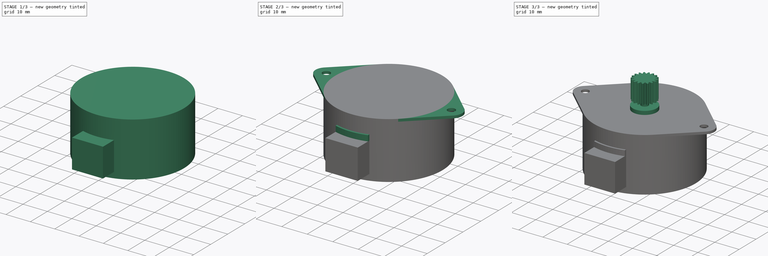
[diagram: build sequence overview — one tinted view per stage of 3, left to right]
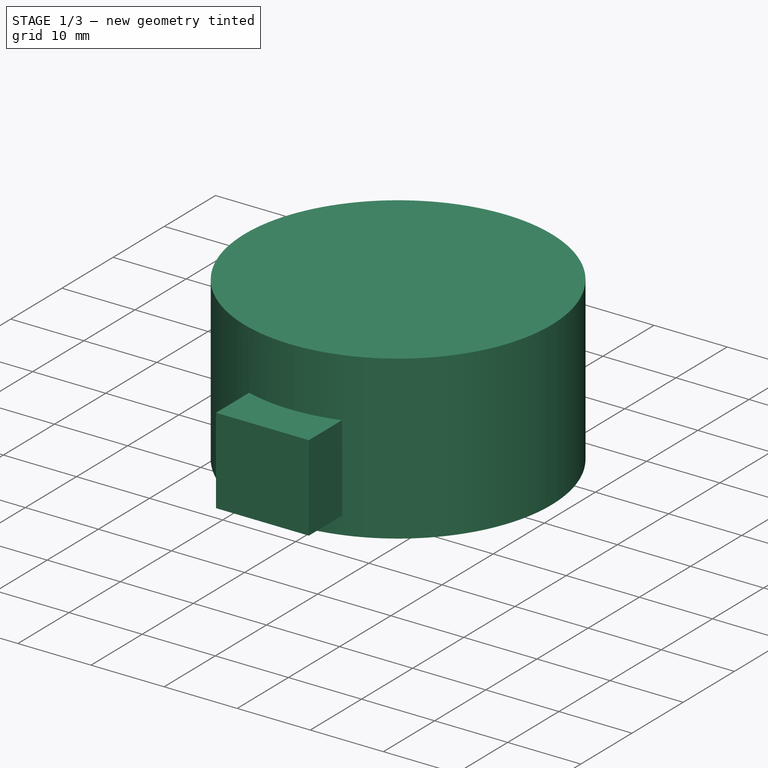
[diagram: stage 1 of 3 — iso view after this stage's code; geometry added in this stage tinted green]
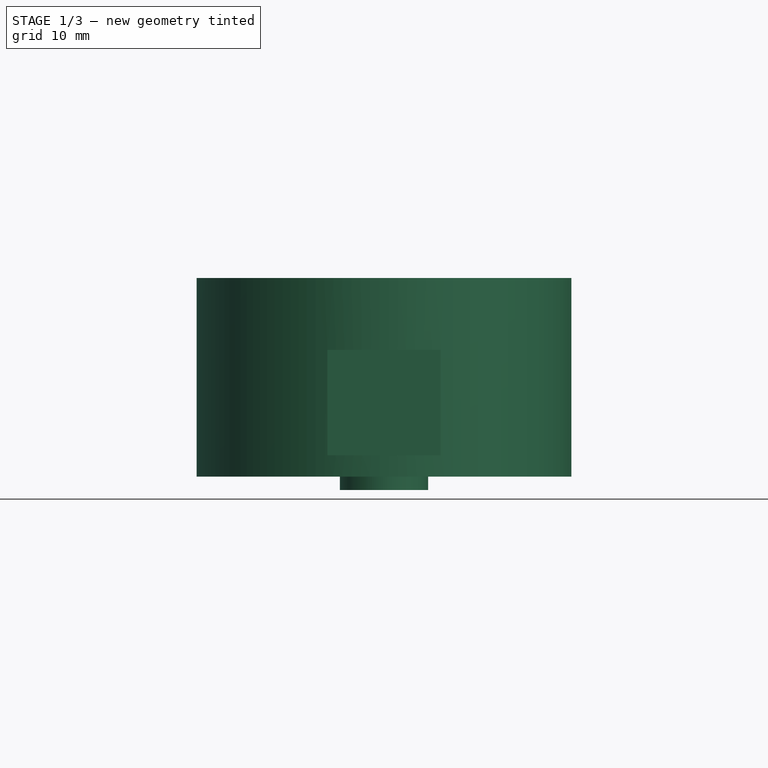
[diagram: stage 1 of 3 — front view after this stage's code; geometry added in this stage tinted green]
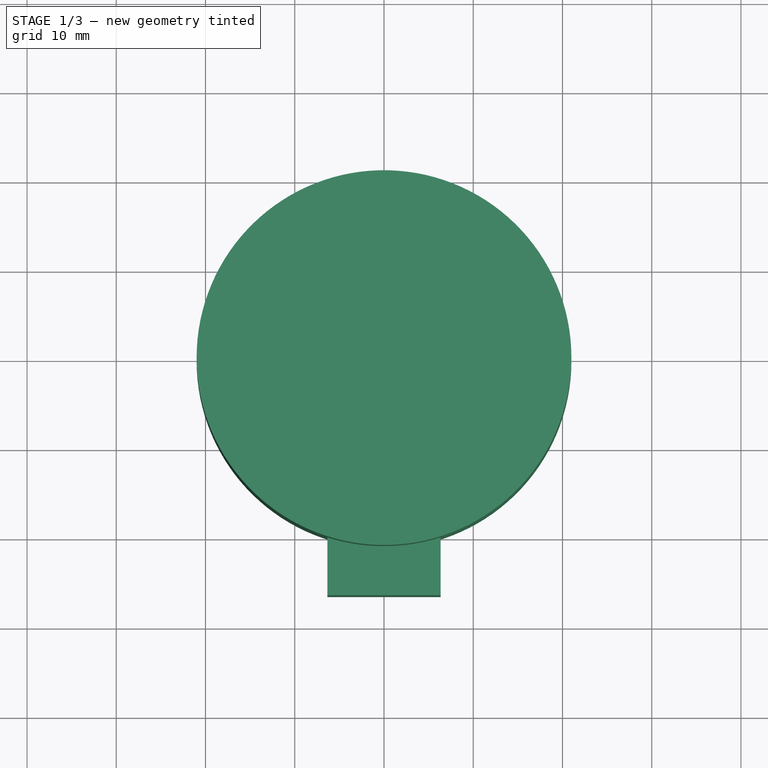
[diagram: stage 1 of 3 — top view after this stage's code; geometry added in this stage tinted green]
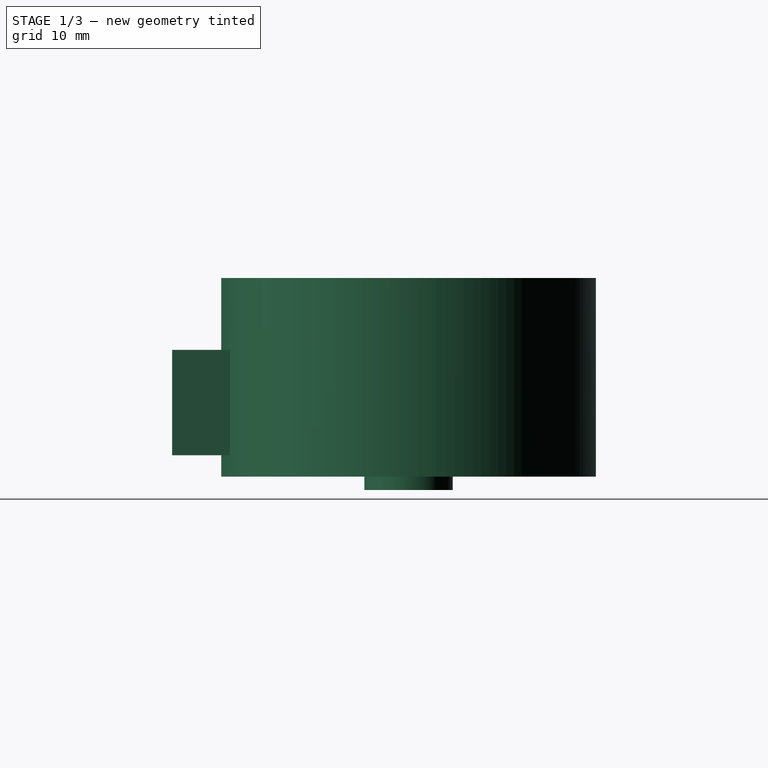
[diagram: stage 1 of 3 — right view after this stage's code; geometry added in this stage tinted green]
FCSTD DOCUMENT  (FreeCAD 0.19R21280 (Git))
Label: motor
License: All rights reserved
LicenseURL: http://en.wikipedia.org/wiki/All_rights_reserved
objects: Sketcher::SketchObject×8, PartDesign::Pad×8, Part::FeaturePython×6, App::FeaturePython×2, Part::Plane×1, Part::Part2DObjectPython×1, PartDesign::Body×1
note: 32 computed .brp shape members not serialized (recipe doc carries the construction recipe); baked Part::Feature solids carry a one-line shape summary decoded from their .brp

FEATURE [Sketcher::SketchObject] Sketch
  MapMode = 5
  Support = -> [XY_Plane]
  sketch-geometry (1):
    g0: Circle CenterX=0 CenterY=0 CenterZ=0 NormalX=0 NormalY=0 NormalZ=1 AngleXU=0 Radius=21
  constraints (2):
    c: Coincident(g0,g-1)
    c: Diameter(g0) = 42
FEATURE [PartDesign::Pad] Pad
  Length = 22.25
  Length2 = 100
  Midplane = true
  Profile = -> Sketch
  Type = 0
FEATURE [Sketcher::SketchObject] Sketch001
  MapMode = 5
  Placement = pos=(0,0,-11.125) rot=(1,0,0;3.14159rad)
  Support = -> [Pad]
  sketch-geometry (1):
    g0: Circle CenterX=0 CenterY=0 CenterZ=0 NormalX=0 NormalY=0 NormalZ=1 AngleXU=0 Radius=4.95
  constraints (2):
    c: Coincident(g0,g-1)
    c: Diameter(g0) = 9.9
FEATURE [PartDesign::Pad] Pad001
  BaseFeature = -> Pad
  Length = 1.5
  Length2 = 100
  Profile = -> Sketch001
  Type = 0
FEATURE [Part::Plane] Plane
  AttacherType = Attacher::AttachEngine3D
  Length = 50
  Placement = pos=(0,0,-8.73) rot=(1,0,0;3.14159rad)
  Width = 50
FEATURE [Sketcher::SketchObject] Sketch002
  ExternalGeometry = -> [Pad001]
  MapMode = 5
  Placement = pos=(0,0,-8.73) rot=(1,0,0;3.14159rad)
  Support = -> [Plane]
  sketch-geometry (5):
    g0: ArcOfCircle CenterX=0 CenterY=0 CenterZ=0 NormalX=0 NormalY=0 NormalZ=1 AngleXU=0 Radius=21 StartAngle=1.26361 EndAngle=1.87799
    g1: LineSegment StartX=-6.35 StartY=20.0169 StartZ=0 EndX=-6.35 EndY=26.5 EndZ=0
    g2: LineSegment StartX=-6.35 StartY=26.5 StartZ=0 EndX=6.35 EndY=26.5 EndZ=0
    g3: LineSegment StartX=6.35 StartY=26.5 StartZ=0 EndX=6.35 EndY=20.0169 EndZ=0
    g4: LineSegment [constr] StartX=0 StartY=26.5 StartZ=0 EndX=0 EndY=21 EndZ=0
  constraints (16):
    c: Coincident(g0,g-1)
    c: PointOnObject(g0,g-3)
    c: Coincident(g0,g1)
    c: Coincident(g1,g2)
    c: Horizontal(g2)
    c: Coincident(g2,g3)
    c: Coincident(g3,g0)
    c: Vertical(g3)
    c: Symmetric(g0,g0,g-2)
    c: Vertical(g1)
    c: DistanceX(g2,g2) = 12.7
    c: PointOnObject(g4,g-2)
    c: PointOnObject(g4,g0)
    c: PointOnObject(g4,g-2)
    c: PointOnObject(g4,g2)
    c: DistanceY(g4,g4) = 5.5
FEATURE [PartDesign::Pad] Pad002
  BaseFeature = -> Pad001
  Length = 11.8
  Length2 = 100
  Profile = -> Sketch002
  Reversed = true
  Type = 0
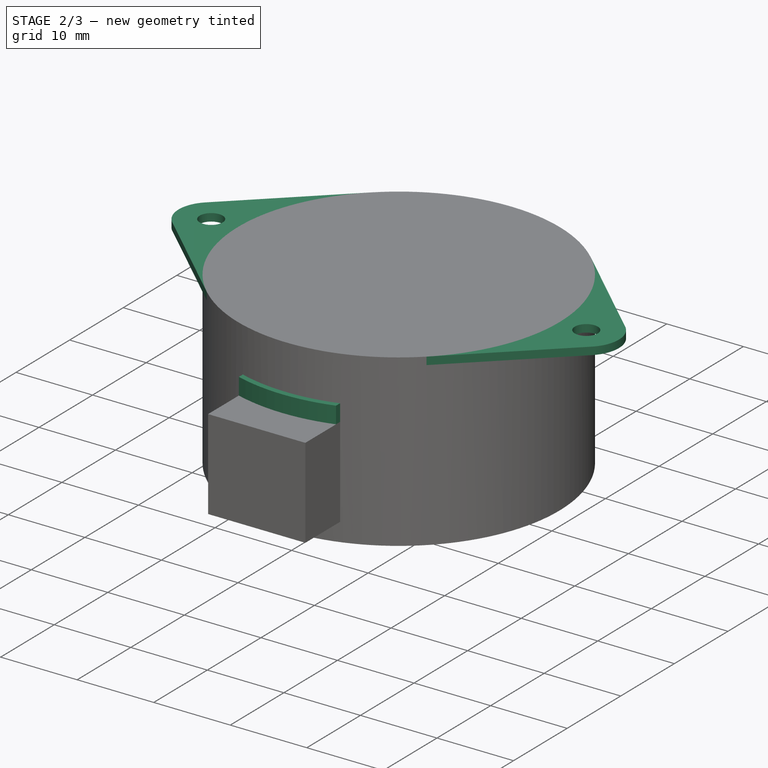
[diagram: stage 2 of 3 — iso view after this stage's code; geometry added in this stage tinted green]
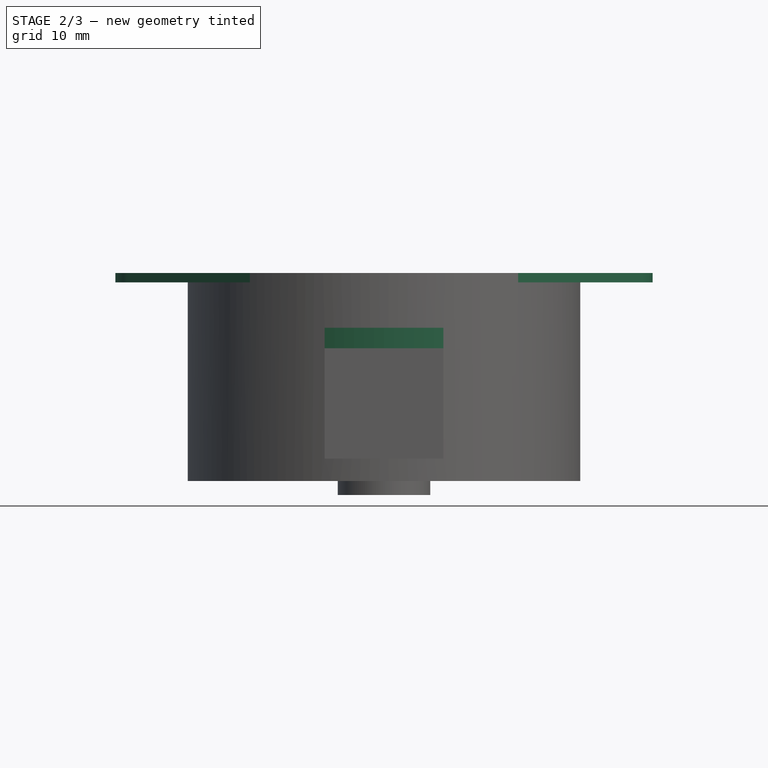
[diagram: stage 2 of 3 — front view after this stage's code; geometry added in this stage tinted green]
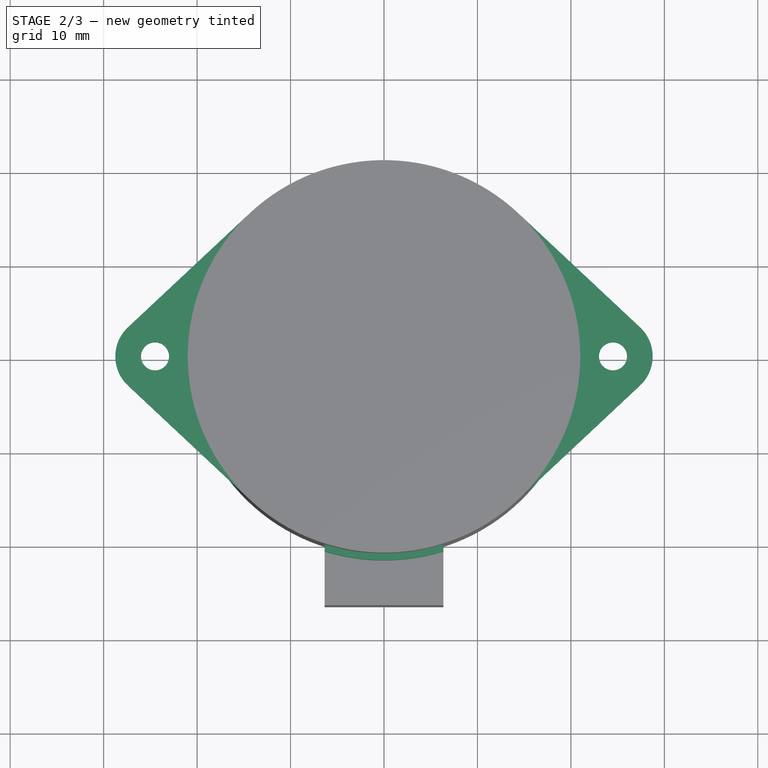
[diagram: stage 2 of 3 — top view after this stage's code; geometry added in this stage tinted green]
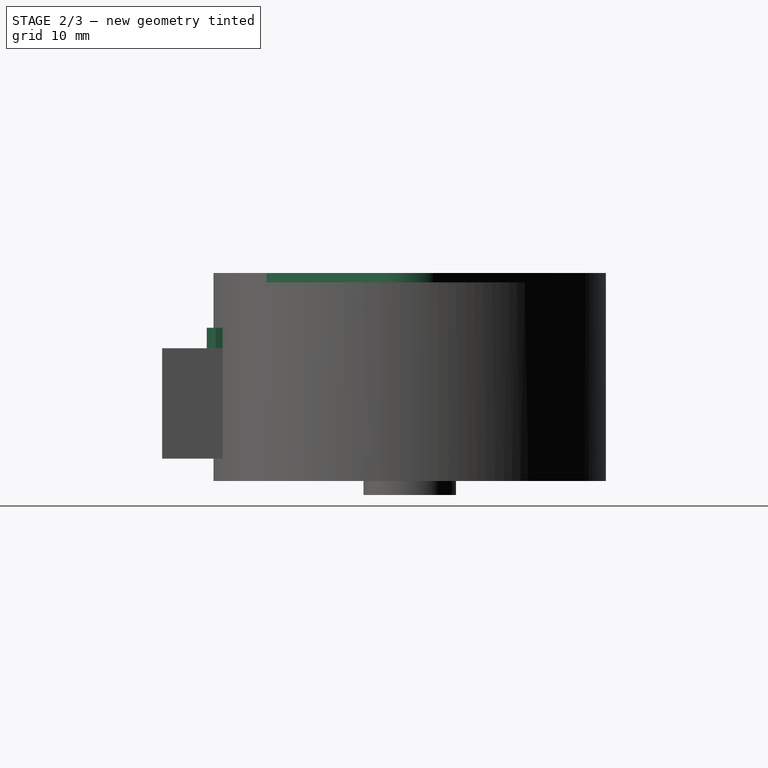
[diagram: stage 2 of 3 — right view after this stage's code; geometry added in this stage tinted green]
FEATURE [Sketcher::SketchObject] Sketch003
  ExternalGeometry = -> [Pad002]
  MapMode = 5
  Placement = pos=(0,9e-16,3.07) rot=(0,0,1;0rad)
  Support = -> [Pad002]
  sketch-geometry (4):
    g0: ArcOfCircle CenterX=-4.3e-15 CenterY=-1e-16 CenterZ=0 NormalX=0 NormalY=0 NormalZ=1 AngleXU=0 Radius=21 StartAngle=4.4052 EndAngle=5.01958
    g1: ArcOfCircle CenterX=-4.3e-15 CenterY=-1e-16 CenterZ=0 NormalX=0 NormalY=0 NormalZ=1 AngleXU=0 Radius=21.7161 StartAngle=4.41564 EndAngle=5.00914
    g2: LineSegment StartX=-6.35 StartY=-20.0169 StartZ=0 EndX=-6.35 EndY=-20.7669 EndZ=0
    g3: LineSegment StartX=6.35 StartY=-20.0169 StartZ=0 EndX=6.35 EndY=-20.7669 EndZ=0
  constraints (11):
    c: Coincident(g0,g-3)
    c: Coincident(g0,g-3)
    c: Equal(g-3,g0)
    c: Coincident(g1,g0)
    c: Coincident(g2,g0)
    c: Vertical(g2)
    c: Coincident(g3,g0)
    c: Vertical(g3)
    c: Coincident(g1,g2)
    c: Coincident(g3,g1)
    c: DistanceY(g3,g3) = 0.75
FEATURE [PartDesign::Pad] Pad003
  BaseFeature = -> Pad002
  Length = 2.2
  Length2 = 100
  Profile = -> Sketch003
  Type = 0
FEATURE [Sketcher::SketchObject] Sketch004
  ExternalGeometry = -> [Pad003]
  MapMode = 5
  Placement = pos=(0,0,11.125) rot=(0,0,1;0rad)
  Support = -> [Pad003]
  sketch-geometry (12):
    g0: Circle CenterX=24.5 CenterY=0 CenterZ=0 NormalX=0 NormalY=0 NormalZ=1 AngleXU=0 Radius=1.5
    g1: ArcOfCircle CenterX=24.5 CenterY=0 CenterZ=0 NormalX=0 NormalY=0 NormalZ=1 AngleXU=0 Radius=4.25 StartAngle=5.46517 EndAngle=7.1012
    g2: LineSegment StartX=27.4056 StartY=3.1016 StartZ=0 EndX=14.3571 EndY=15.3255 EndZ=0
    g3: LineSegment StartX=27.4056 StartY=-3.1016 StartZ=0 EndX=14.3571 EndY=-15.3255 EndZ=0
    g4: Circle CenterX=-24.5 CenterY=0 CenterZ=0 NormalX=0 NormalY=0 NormalZ=1 AngleXU=0 Radius=1.5
    g5: ArcOfCircle CenterX=-24.5 CenterY=0 CenterZ=0 NormalX=0 NormalY=0 NormalZ=1 AngleXU=0 Radius=4.25 StartAngle=2.32358 EndAngle=3.9596
    g6: LineSegment StartX=-27.4056 StartY=-3.1016 StartZ=0 EndX=-14.3571 EndY=-15.3256 EndZ=0
    g7: LineSegment StartX=-27.4056 StartY=3.1016 StartZ=0 EndX=-14.3571 EndY=15.3255 EndZ=0
    g8: GeomPoint X=-28.75 Y=0 Z=0
    g9: GeomPoint X=28.75 Y=0 Z=0
    g10: ArcOfCircle CenterX=2.3e-15 CenterY=-1.1e-15 CenterZ=0 NormalX=0 NormalY=0 NormalZ=1 AngleXU=0 Radius=21 StartAngle=2.32358 EndAngle=3.95961
    g11: ArcOfCircle CenterX=4e-16 CenterY=-1.3e-15 CenterZ=0 NormalX=0 NormalY=0 NormalZ=1 AngleXU=0 Radius=21 StartAngle=5.46517 EndAngle=7.1012
  constraints (30):
    c: PointOnObject(g0,g-1)
    c: Coincident(g1,g0)
    c: Diameter(g0) = 3
    c: PointOnObject(g2,g-3)
    c: PointOnObject(g3,g-3)
    c: Tangent(g2,g-3)
    c: Tangent(g3,g-3)
    c: Coincident(g5,g4)
    c: PointOnObject(g7,g-3)
    c: PointOnObject(g6,g-3)
    c: Tangent(g7,g-3)
    c: Tangent(g7,g5) = 1.5708
    c: Tangent(g6,g5) = -1.5708
    c: Equal(g4,g0)
    c: Symmetric(g4,g0,g-2)
    c: Tangent(g2,g1) = -1.5708
    c: Tangent(g3,g1) = 1.5708
    c: DistanceX(g4,g0) = 49
    c: Symmetric(g5,g1,g-2)
    c: PointOnObject(g8,g-1)
    c: PointOnObject(g8,g5)
    c: PointOnObject(g9,g-1)
    c: PointOnObject(g9,g1)
    c: DistanceX(g8,g9) = 57.5
    c: Coincident(g10,g7)
    c: Coincident(g10,g6)
    c: Equal(g10,g-3)
    c: Coincident(g11,g2)
    c: Coincident(g11,g3)
    c: Equal(g11,g-3)
FEATURE [PartDesign::Pad] Pad004
  BaseFeature = -> Pad003
  Length = 1
  Length2 = 100
  Profile = -> Sketch004
  Reversed = true
  Type = 0
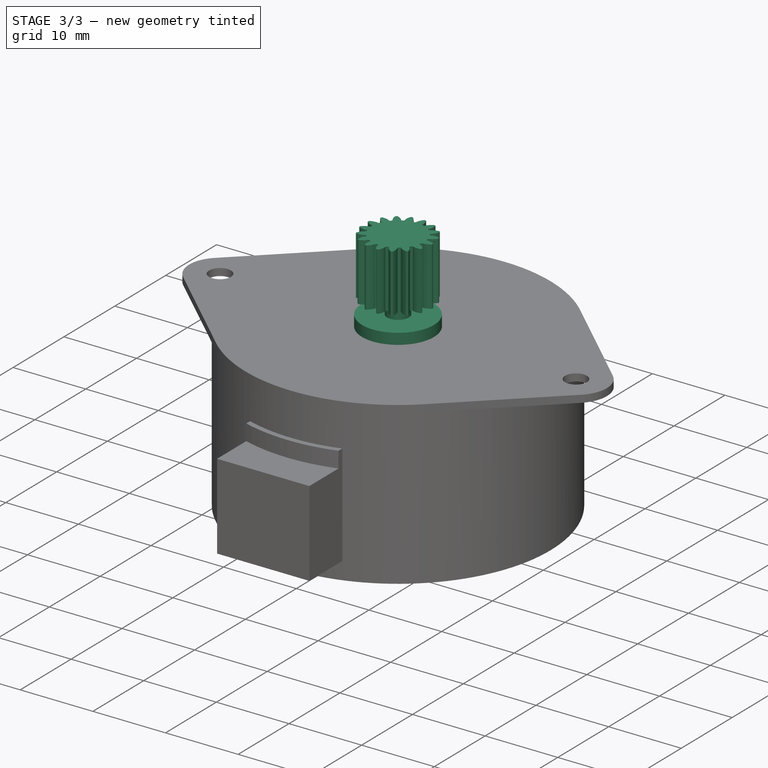
[diagram: stage 3 of 3 — iso view after this stage's code; geometry added in this stage tinted green]
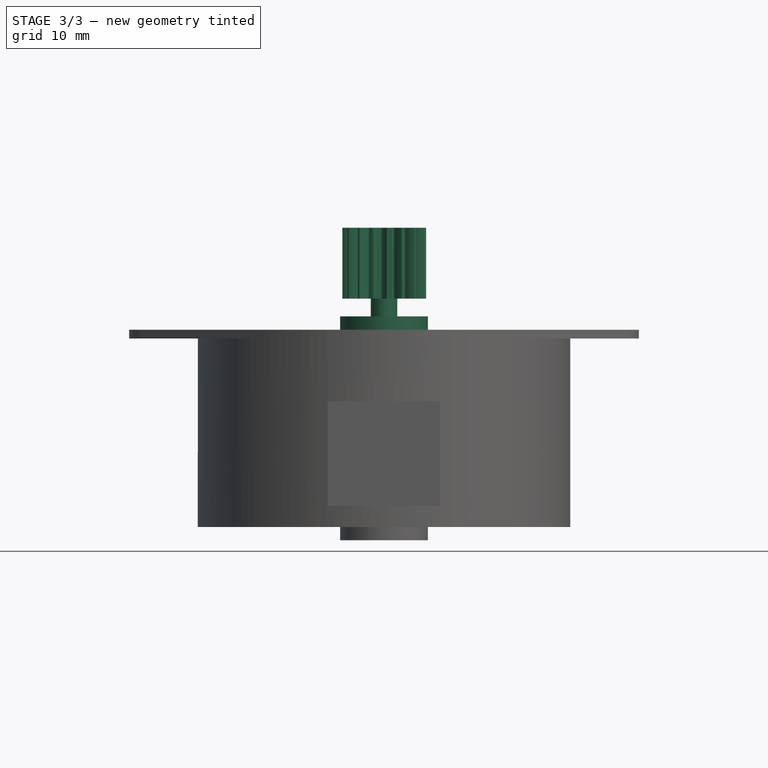
[diagram: stage 3 of 3 — front view after this stage's code; geometry added in this stage tinted green]
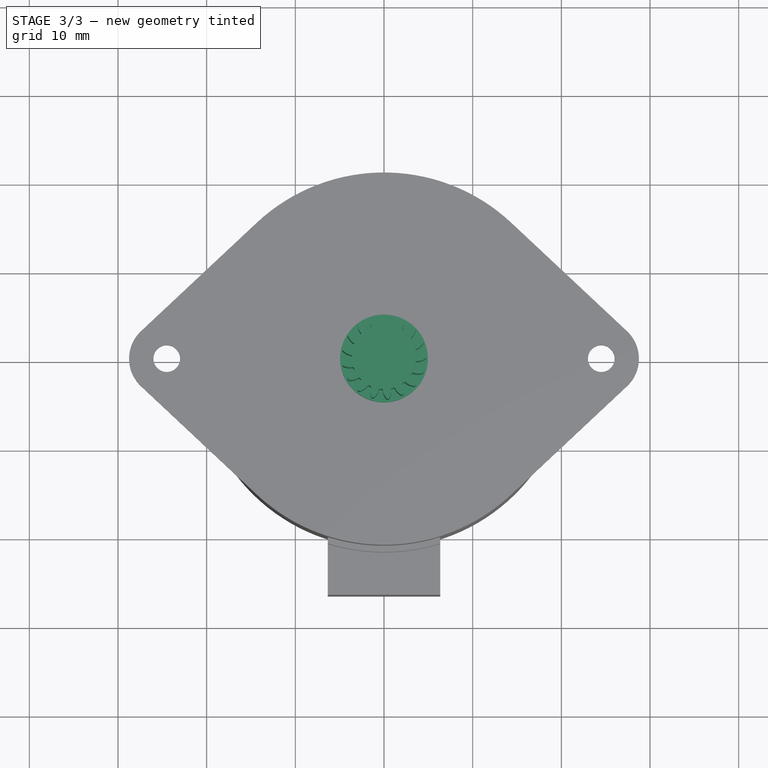
[diagram: stage 3 of 3 — top view after this stage's code; geometry added in this stage tinted green]
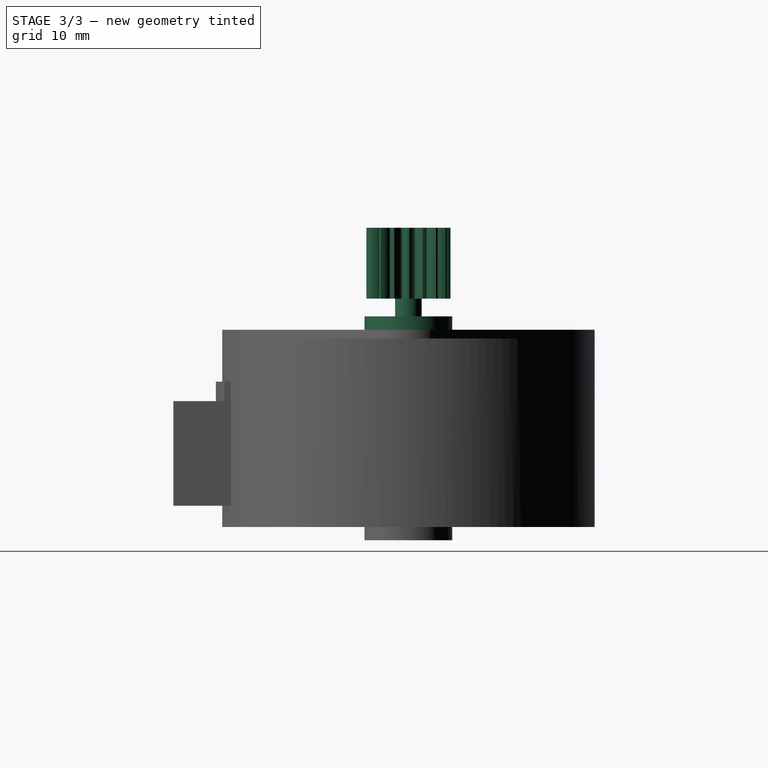
[diagram: stage 3 of 3 — right view after this stage's code; geometry added in this stage tinted green]
FEATURE [Sketcher::SketchObject] Sketch005
  ExternalGeometry = -> [Pad004]
  MapMode = 5
  Placement = pos=(0,0,11.125) rot=(0,0,1;0rad)
  Support = -> [Pad004]
  sketch-geometry (1):
    g0: Circle CenterX=0 CenterY=0 CenterZ=0 NormalX=0 NormalY=0 NormalZ=1 AngleXU=0 Radius=4.95
  constraints (2):
    c: Coincident(g0,g-1)
    c: Equal(g-3,g0)
FEATURE [PartDesign::Pad] Pad005
  BaseFeature = -> Pad004
  Length = 1.5
  Length2 = 100
  Profile = -> Sketch005
  Type = 0
FEATURE [Sketcher::SketchObject] Sketch006
  MapMode = 5
  Placement = pos=(0,0,12.625) rot=(0,0,1;0rad)
  Support = -> [Pad005]
  sketch-geometry (1):
    g0: Circle CenterX=0 CenterY=0 CenterZ=0 NormalX=0 NormalY=0 NormalZ=1 AngleXU=0 Radius=1.5
  constraints (2):
    c: Coincident(g0,g-1)
    c: Diameter(g0) = 3
FEATURE [PartDesign::Pad] Pad006
  BaseFeature = -> Pad005
  Length = 2
  Length2 = 100
  Profile = -> Sketch006
  Type = 0
FEATURE [Part::Part2DObjectPython] InvoluteGear  # Draft 2D object (typed FeaturePython)
  ExternalGear = true
  HighPrecision = true
  MapMode = 5
  Modules = 0.5
  NumberOfTeeth = 17
  Placement = pos=(0,0,14.625) rot=(0,0,1;0rad)
  PressureAngle = 25
  Support = -> [Pad006]
FEATURE [PartDesign::Pad] Pad007
  BaseFeature = -> Pad006
  Length = 8
  Length2 = 100
  Profile = -> InvoluteGear
  Type = 0
FEATURE [Sketcher::SketchObject] Sketch007
  MapMode = 5
  Placement = pos=(0,0,14.625) rot=(0,0,1;0rad)
  Support = -> [Pad006]
FEATURE [PartDesign::Body] Body
  Group = -> [Sketch,Pad,Sketch001,Pad001,Sketch002,Pad002,Sketch003,Pad003,Sketch004,Pad004,Sketch005,Pad005,Sketch006,Pad006,Sketch007,Pad007]
  Origin = -> Origin
  Tip = -> Pad007
FEATURE [App::FeaturePython] Constraints  # WARN: FeaturePython — macro-defined, semantics opaque (R4)
  _Version = 1
FEATURE [Part::FeaturePython] Parts  # WARN: FeaturePython — macro-defined, semantics opaque (R4)
  Group = -> [Body,Plane]
  GroupMode = 0
FEATURE [Part::FeaturePython] Assembly  label="motor"  # WARN: FeaturePython — macro-defined, semantics opaque (R4)
  AutoRelax = true
  BuildShape = 0
  Freeze = false
  Group = -> [Constraints,Elements,Parts]
  Verbose = false
  _SolverType = 1
  _Version = 1
FEATURE [App::FeaturePython] Elements  # WARN: FeaturePython — macro-defined, semantics opaque (R4)
  Group = -> [Element,Element001,Element002,Element003]
FEATURE [Part::FeaturePython] Element  label="motor-hole1"  # link proxy (typed FeaturePython)
  Detach = false
  LinkTransform = true
  LinkedObject = -> Body [Pad007.Edge57]
  _Parent = -> Elements
FEATURE [Part::FeaturePython] Element001  label="motor-hole2"  # link proxy (typed FeaturePython)
  Detach = false
  LinkTransform = true
  LinkedObject = -> Body [Pad007.Edge59]
  _Parent = -> Elements
FEATURE [Part::FeaturePython] Element002  label="gear-face"  # link proxy (typed FeaturePython)
  Detach = false
  LinkTransform = true
  LinkedObject = -> Body [Pad007.Face201]
  _Parent = -> Elements
FEATURE [Part::FeaturePython] Element003  label="outer-edge"  # link proxy (typed FeaturePython)
  Detach = false
  LinkTransform = true
  LinkedObject = -> Body [Pad007.Edge5]
  _Parent = -> Elements
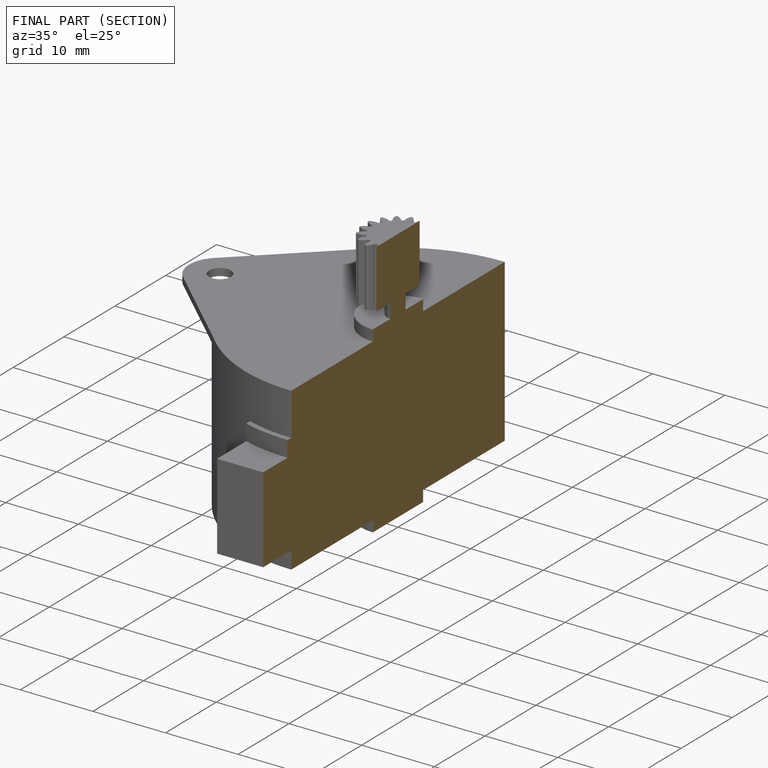
[diagram: finished part — half-section view (interior)]
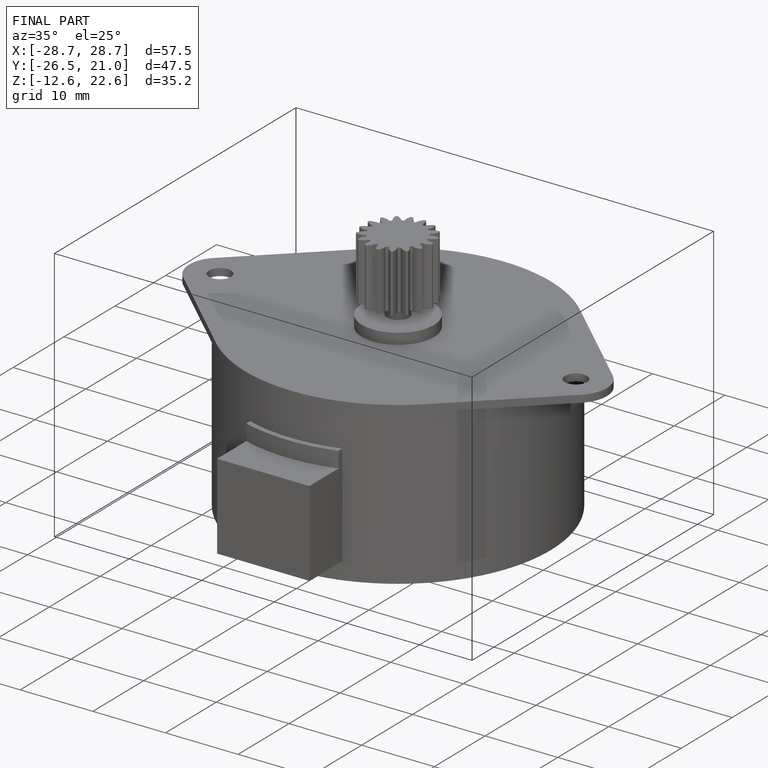
[diagram: finished part — iso view with bounding-box wireframe]
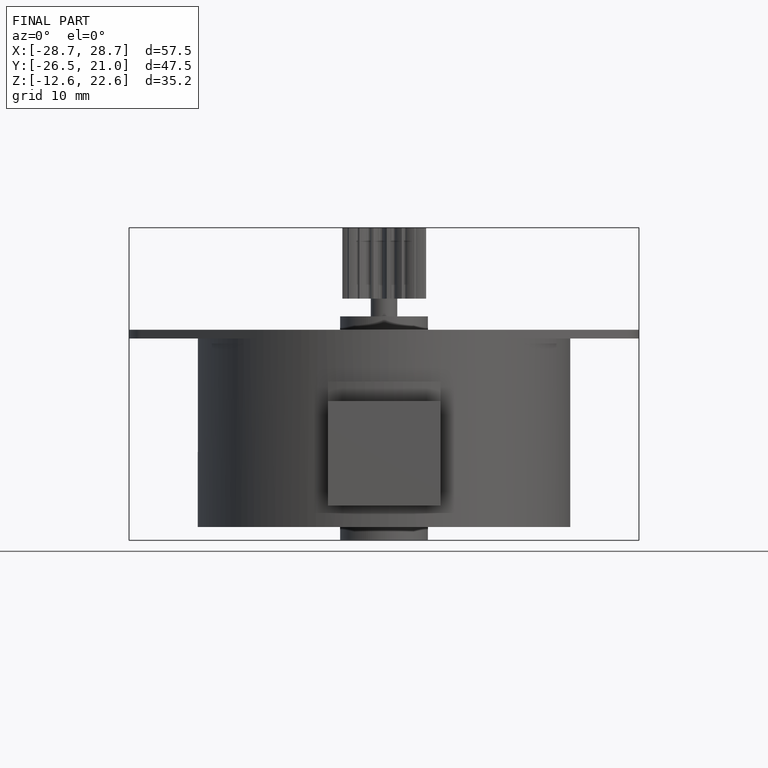
[diagram: finished part — front view with bounding-box wireframe]
